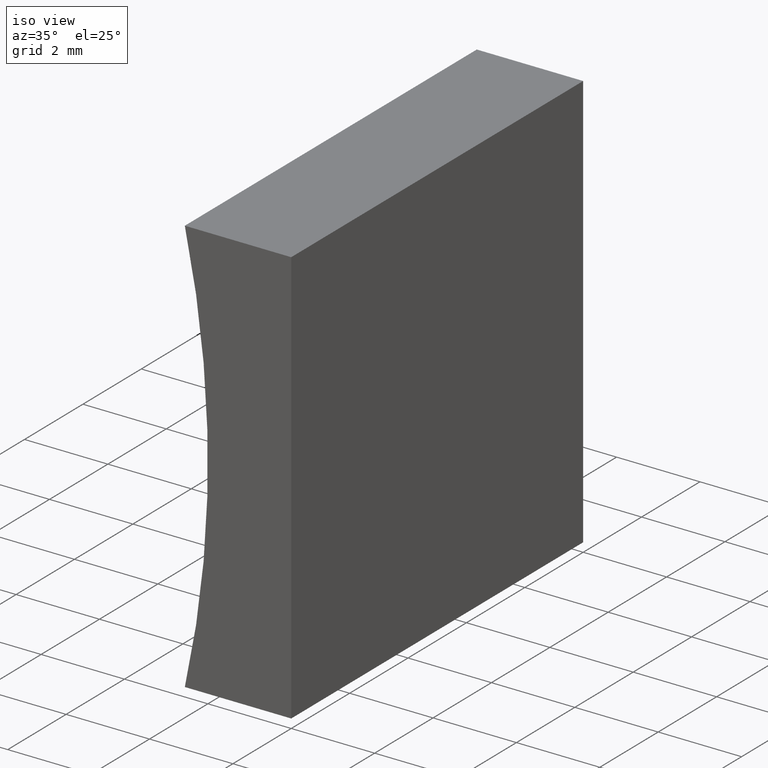
[diagram: clean part render]
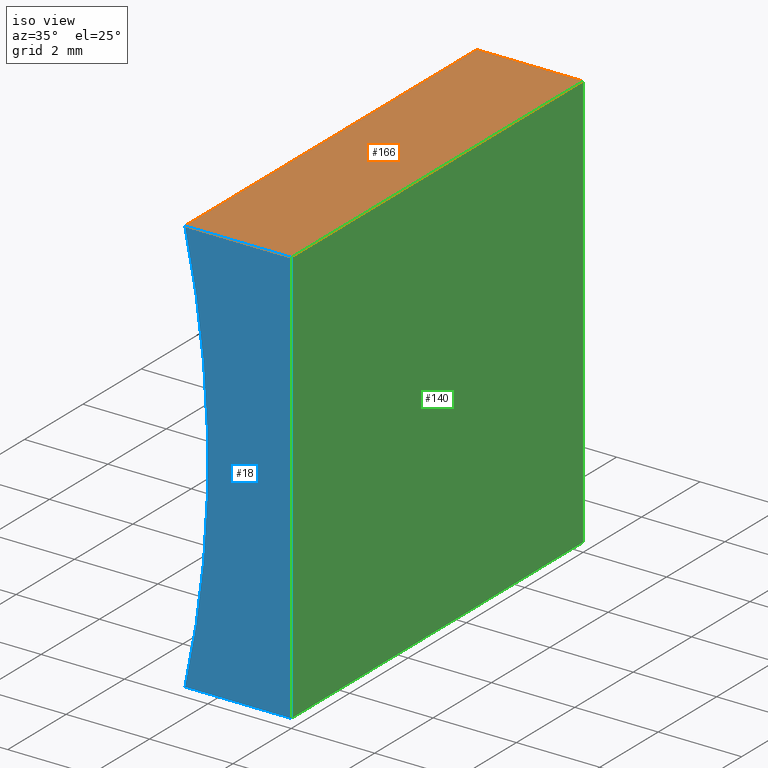
[diagram: same view with three faces highlighted in distinct colors, each labeled with its STEP entity id]
A machine part, iso view with three faces highlighted in distinct colors.
Their STEP definitions:

[orange] entity #166 — the highlighted planar face has unit normal (-0, 0, -1).
#3 = VERTEX_POINT ( 'NONE', #155 ) ;
#4 = ORIENTED_EDGE ( 'NONE', *, *, #74, .T. ) ;
#12 = VERTEX_POINT ( 'NONE', #69 ) ;
#25 = VECTOR ( 'NONE', #94, 1000.000000000000000 ) ;
#29 = VECTOR ( 'NONE', #163, 1000.000000000000000 ) ;
#35 = CARTESIAN_POINT ( 'NONE',  ( -2.552022889854344400, 10.00000000000000000, 10.00000000000000200 ) ) ;
#37 = DIRECTION ( 'NONE',  ( -6.797444814751702500E-016, 0.0000000000000000000, -1.000000000000000000 ) ) ;
#44 = LINE ( 'NONE', #173, #169 ) ;
#46 = CARTESIAN_POINT ( 'NONE',  ( 6.123233995736766300E-016, 10.00000000000000000, 10.00000000000000000 ) ) ;
#54 = VECTOR ( 'NONE', #73, 1000.000000000000000 ) ;
#61 = EDGE_LOOP ( 'NONE', ( #62, #203, #96, #4 ) ) ;
#62 = ORIENTED_EDGE ( 'NONE', *, *, #147, .T. ) ;
#66 = CARTESIAN_POINT ( 'NONE',  ( 6.123233995736766300E-016, 10.00000000000000000, 10.00000000000000000 ) ) ;
#69 = CARTESIAN_POINT ( 'NONE',  ( -2.552022889854344400, 0.0000000000000000000, 10.00000000000000200 ) ) ;
#73 = DIRECTION ( 'NONE',  ( -0.0000000000000000000, -1.000000000000000000, -0.0000000000000000000 ) ) ;
#74 = EDGE_CURVE ( 'NONE', #110, #12, #145, .T. ) ;
#76 = CARTESIAN_POINT ( 'NONE',  ( -2.552022889854344400, 10.00000000000000000, 10.00000000000000200 ) ) ;
#84 = PLANE ( 'NONE',  #131 ) ;
#89 = CARTESIAN_POINT ( 'NONE',  ( 6.123233995736766300E-016, 10.00000000000000000, 10.00000000000000000 ) ) ;
#94 = DIRECTION ( 'NONE',  ( 1.000000000000000000, -0.0000000000000000000, -6.797444814751702500E-016 ) ) ;
#96 = ORIENTED_EDGE ( 'NONE', *, *, #136, .F. ) ;
#110 = VERTEX_POINT ( 'NONE', #35 ) ;
#115 = EDGE_CURVE ( 'NONE', #201, #3, #156, .T. ) ;
#129 = FACE_OUTER_BOUND ( 'NONE', #61, .T. ) ;
#131 = AXIS2_PLACEMENT_3D ( 'NONE', #46, #37, #170 ) ;
#136 = EDGE_CURVE ( 'NONE', #110, #201, #172, .T. ) ;
#145 = LINE ( 'NONE', #76, #29 ) ;
#147 = EDGE_CURVE ( 'NONE', #12, #3, #44, .T. ) ;
#149 = CARTESIAN_POINT ( 'NONE',  ( 6.123233995736766300E-016, 10.00000000000000000, 10.00000000000000000 ) ) ;
#155 = CARTESIAN_POINT ( 'NONE',  ( 6.123233995736766300E-016, 0.0000000000000000000, 10.00000000000000000 ) ) ;
#156 = LINE ( 'NONE', #89, #54 ) ;
#163 = DIRECTION ( 'NONE',  ( -0.0000000000000000000, -1.000000000000000000, -0.0000000000000000000 ) ) ;
#166 = ADVANCED_FACE ( 'NONE', ( #129 ), #84, .F. ) ;
#169 = VECTOR ( 'NONE', #196, 1000.000000000000000 ) ;
#170 = DIRECTION ( 'NONE',  ( -1.000000000000000000, 0.0000000000000000000, 6.797444814751702500E-016 ) ) ;
#172 = LINE ( 'NONE', #66, #25 ) ;
#173 = CARTESIAN_POINT ( 'NONE',  ( 6.123233995736766300E-016, 0.0000000000000000000, 10.00000000000000000 ) ) ;
#196 = DIRECTION ( 'NONE',  ( 1.000000000000000000, -0.0000000000000000000, -6.797444814751702500E-016 ) ) ;
#201 = VERTEX_POINT ( 'NONE', #149 ) ;
#203 = ORIENTED_EDGE ( 'NONE', *, *, #115, .F. ) ;

[blue] entity #18 — the highlighted planar face has unit normal (0, 1, 0).
#2 = EDGE_CURVE ( 'NONE', #179, #12, #175, .T. ) ;
#3 = VERTEX_POINT ( 'NONE', #155 ) ;
#7 = CARTESIAN_POINT ( 'NONE',  ( 0.0000000000000000000, 0.0000000000000000000, 0.0000000000000000000 ) ) ;
#12 = VERTEX_POINT ( 'NONE', #69 ) ;
#13 = DIRECTION ( 'NONE',  ( 0.0000000000000000000, 0.0000000000000000000, 1.000000000000000000 ) ) ;
#17 = EDGE_CURVE ( 'NONE', #70, #179, #79, .T. ) ;
#18 = ADVANCED_FACE ( 'NONE', ( #40 ), #27, .F. ) ;
#20 = DIRECTION ( 'NONE',  ( -1.000000000000000000, 0.0000000000000000000, -6.797444814751699500E-016 ) ) ;
#23 = DIRECTION ( 'NONE',  ( 0.0000000000000000000, 1.000000000000000000, 0.0000000000000000000 ) ) ;
#27 = PLANE ( 'NONE',  #181 ) ;
#31 = EDGE_LOOP ( 'NONE', ( #42, #81, #65, #185 ) ) ;
#34 = EDGE_CURVE ( 'NONE', #3, #70, #200, .T. ) ;
#40 = FACE_OUTER_BOUND ( 'NONE', #31, .T. ) ;
#42 = ORIENTED_EDGE ( 'NONE', *, *, #17, .F. ) ;
#44 = LINE ( 'NONE', #173, #169 ) ;
#50 = DIRECTION ( 'NONE',  ( -6.123233995736766000E-017, -0.0000000000000000000, -1.000000000000000000 ) ) ;
#65 = ORIENTED_EDGE ( 'NONE', *, *, #147, .F. ) ;
#69 = CARTESIAN_POINT ( 'NONE',  ( -2.552022889854344400, 0.0000000000000000000, 10.00000000000000200 ) ) ;
#70 = VERTEX_POINT ( 'NONE', #92 ) ;
#79 = LINE ( 'NONE', #7, #104 ) ;
#81 = ORIENTED_EDGE ( 'NONE', *, *, #34, .F. ) ;
#92 = CARTESIAN_POINT ( 'NONE',  ( 0.0000000000000000000, 0.0000000000000000000, 0.0000000000000000000 ) ) ;
#104 = VECTOR ( 'NONE', #20, 1000.000000000000000 ) ;
#117 = DIRECTION ( 'NONE',  ( -0.0000000000000000000, -1.000000000000000000, -0.0000000000000000000 ) ) ;
#138 = CARTESIAN_POINT ( 'NONE',  ( -24.92000000000000200, 0.0000000000000000000, 5.000000000000003600 ) ) ;
#147 = EDGE_CURVE ( 'NONE', #12, #3, #44, .T. ) ;
#155 = CARTESIAN_POINT ( 'NONE',  ( 6.123233995736766300E-016, 0.0000000000000000000, 10.00000000000000000 ) ) ;
#157 = AXIS2_PLACEMENT_3D ( 'NONE', #138, #117, #13 ) ;
#169 = VECTOR ( 'NONE', #196, 1000.000000000000000 ) ;
#173 = CARTESIAN_POINT ( 'NONE',  ( 6.123233995736766300E-016, 0.0000000000000000000, 10.00000000000000000 ) ) ;
#175 = CIRCLE ( 'NONE', #157, 22.91999999999999800 ) ;
#179 = VERTEX_POINT ( 'NONE', #193 ) ;
#181 = AXIS2_PLACEMENT_3D ( 'NONE', #195, #23, #190 ) ;
#183 = CARTESIAN_POINT ( 'NONE',  ( 0.0000000000000000000, 0.0000000000000000000, 0.0000000000000000000 ) ) ;
#185 = ORIENTED_EDGE ( 'NONE', *, *, #2, .F. ) ;
#190 = DIRECTION ( 'NONE',  ( 0.0000000000000000000, -0.0000000000000000000, 1.000000000000000000 ) ) ;
#192 = VECTOR ( 'NONE', #50, 1000.000000000000000 ) ;
#193 = CARTESIAN_POINT ( 'NONE',  ( -2.552022889854347600, 0.0000000000000000000, -3.469446951953614200E-015 ) ) ;
#195 = CARTESIAN_POINT ( 'NONE',  ( -24.92000000000000200, 0.0000000000000000000, 5.000000000000003600 ) ) ;
#196 = DIRECTION ( 'NONE',  ( 1.000000000000000000, -0.0000000000000000000, -6.797444814751702500E-016 ) ) ;
#200 = LINE ( 'NONE', #183, #192 ) ;

[green] entity #140 — the highlighted planar face has unit normal (-1, 0, 0).
#3 = VERTEX_POINT ( 'NONE', #155 ) ;
#26 = EDGE_CURVE ( 'NONE', #171, #70, #189, .T. ) ;
#34 = EDGE_CURVE ( 'NONE', #3, #70, #200, .T. ) ;
#38 = CARTESIAN_POINT ( 'NONE',  ( 0.0000000000000000000, 10.00000000000000000, 0.0000000000000000000 ) ) ;
#43 = PLANE ( 'NONE',  #57 ) ;
#45 = DIRECTION ( 'NONE',  ( 6.123233995736766000E-017, 0.0000000000000000000, 1.000000000000000000 ) ) ;
#49 = VECTOR ( 'NONE', #133, 1000.000000000000000 ) ;
#50 = DIRECTION ( 'NONE',  ( -6.123233995736766000E-017, -0.0000000000000000000, -1.000000000000000000 ) ) ;
#51 = CARTESIAN_POINT ( 'NONE',  ( 0.0000000000000000000, 10.00000000000000000, 0.0000000000000000000 ) ) ;
#54 = VECTOR ( 'NONE', #73, 1000.000000000000000 ) ;
#57 = AXIS2_PLACEMENT_3D ( 'NONE', #77, #95, #45 ) ;
#58 = VECTOR ( 'NONE', #82, 1000.000000000000000 ) ;
#70 = VERTEX_POINT ( 'NONE', #92 ) ;
#73 = DIRECTION ( 'NONE',  ( -0.0000000000000000000, -1.000000000000000000, -0.0000000000000000000 ) ) ;
#77 = CARTESIAN_POINT ( 'NONE',  ( 0.0000000000000000000, 10.00000000000000000, 0.0000000000000000000 ) ) ;
#82 = DIRECTION ( 'NONE',  ( -0.0000000000000000000, -1.000000000000000000, -0.0000000000000000000 ) ) ;
#85 = EDGE_LOOP ( 'NONE', ( #86, #122, #113, #191 ) ) ;
#86 = ORIENTED_EDGE ( 'NONE', *, *, #34, .T. ) ;
#89 = CARTESIAN_POINT ( 'NONE',  ( 6.123233995736766300E-016, 10.00000000000000000, 10.00000000000000000 ) ) ;
#92 = CARTESIAN_POINT ( 'NONE',  ( 0.0000000000000000000, 0.0000000000000000000, 0.0000000000000000000 ) ) ;
#95 = DIRECTION ( 'NONE',  ( -1.000000000000000000, 0.0000000000000000000, 6.123233995736766000E-017 ) ) ;
#113 = ORIENTED_EDGE ( 'NONE', *, *, #150, .F. ) ;
#115 = EDGE_CURVE ( 'NONE', #201, #3, #156, .T. ) ;
#120 = FACE_OUTER_BOUND ( 'NONE', #85, .T. ) ;
#122 = ORIENTED_EDGE ( 'NONE', *, *, #26, .F. ) ;
#133 = DIRECTION ( 'NONE',  ( -6.123233995736766000E-017, -0.0000000000000000000, -1.000000000000000000 ) ) ;
#140 = ADVANCED_FACE ( 'NONE', ( #120 ), #43, .F. ) ;
#146 = CARTESIAN_POINT ( 'NONE',  ( 0.0000000000000000000, 10.00000000000000000, 0.0000000000000000000 ) ) ;
#149 = CARTESIAN_POINT ( 'NONE',  ( 6.123233995736766300E-016, 10.00000000000000000, 10.00000000000000000 ) ) ;
#150 = EDGE_CURVE ( 'NONE', #201, #171, #194, .T. ) ;
#155 = CARTESIAN_POINT ( 'NONE',  ( 6.123233995736766300E-016, 0.0000000000000000000, 10.00000000000000000 ) ) ;
#156 = LINE ( 'NONE', #89, #54 ) ;
#171 = VERTEX_POINT ( 'NONE', #38 ) ;
#183 = CARTESIAN_POINT ( 'NONE',  ( 0.0000000000000000000, 0.0000000000000000000, 0.0000000000000000000 ) ) ;
#189 = LINE ( 'NONE', #146, #58 ) ;
#191 = ORIENTED_EDGE ( 'NONE', *, *, #115, .T. ) ;
#192 = VECTOR ( 'NONE', #50, 1000.000000000000000 ) ;
#194 = LINE ( 'NONE', #51, #49 ) ;
#200 = LINE ( 'NONE', #183, #192 ) ;
#201 = VERTEX_POINT ( 'NONE', #149 ) ;